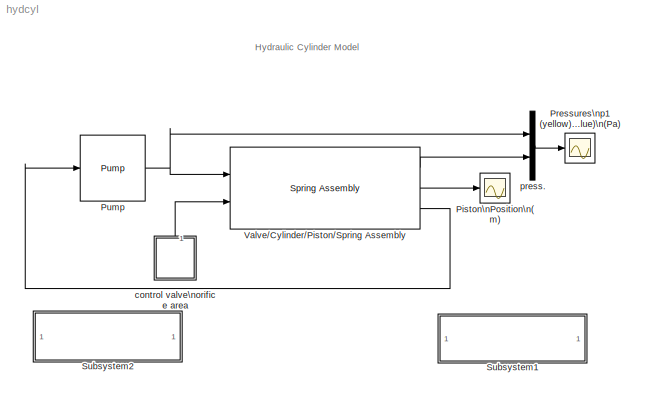
MODEL hydcyl
KIND model
CONFIG PreLoadFcn = load newhcd
BLOCK [Scope] Piston\nPosition\n(m)
  DataFormat = Array
  NumInputPorts = 1
  Ports = [1]
  TickLabels = on
  TimeRange = 0.1
  YMax = 0.04
  YMin = 0
BLOCK [Scope] Pressures\np1 (yellow)\np2 (purple)\np3 (blue)\n(Pa)
  DataFormat = Array
  NumInputPorts = 1
  Ports = [1]
  TickLabels = on
  TimeRange = 0.1
  YMax = 2e+06
  YMin = 0
BLOCK [Reference] Pump  REF=hydlib/Pump  (lib defined in mdl_a1138ae370f5)
  C2 = C2
  Ports = [1, 1]
  Qpump = Qmax*[1 1 0 0 1 1]
  ShowPortLabels = on
  SourceBlock = hydlib/Pump
  SourceType = Pump
  p10 = Qmax/C2*2
  t = [0        .04     .04     .05    .05     .1]
BLOCK [SubSystem] Subsystem1
  MaskDisplay = disp('Double click to see\\na 4 cylinder model.')
  MaskIconFrame = on
  MaskIconOpaque = on
  MaskIconRotate = none
  MaskIconUnits = autoscale
  MaskType = Button
  MinAlgLoopOccurrences = off
  OpenFcn = hydcyl4
  Ports = []
  PropExecContextAcrossSSBoundary = on
  RTWSystemCode = Auto
  ShowPortLabels = off
  TreatAsAtomicUnit = off
BLOCK [SubSystem] Subsystem2
  MaskDisplay = disp('Double click to run the \\nSimulation for 0.1 seconds')
  MaskIconFrame = on
  MaskIconOpaque = on
  MaskIconRotate = none
  MaskIconUnits = autoscale
  MaskType = Button
  MinAlgLoopOccurrences = off
  OpenFcn = sim(get_param(0,'CurrentSystem'),0.1)
  Ports = []
  PropExecContextAcrossSSBoundary = on
  RTWSystemCode = Auto
  ShowPortLabels = off
  TreatAsAtomicUnit = off
BLOCK [Reference] Valve//Cylinder//Piston//Spring Assembly  REF=hydlib/Valve//Cylinder//Piston//Spring Assembly  (lib defined in mdl_a1138ae370f5)
  Ac = Ac
  C1 = C1
  Cd = Cd
  K = K
  Ports = [2, 3]
  ShowPortLabels = on
  SourceBlock = hydlib/Valve//Cylinder//Piston//Spring Assembly
  SourceType = Valve/Cylinder/Piston/Spring Assembly
  V30 = V30
  beta = Beta
  rho = rho
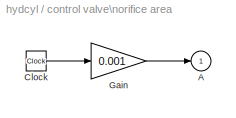
BLOCK [SubSystem] control valve\norifice area
  MaskDisplay = plot(0,0,100,100,[98,0],[96,0])
  MaskIconFrame = on
  MaskIconOpaque = on
  MaskIconRotate = none
  MaskIconUnits = autoscale
  MaskType = Ramp
  MinAlgLoopOccurrences = off
  Ports = [0, 1]
  PropExecContextAcrossSSBoundary = on
  RTWSystemCode = Auto
  ShowPortLabels = off
  TreatAsAtomicUnit = off
BLOCK [Outport] control valve\norifice area/A
  IconDisplay = Port number
  InitialOutput = 0
BLOCK [Clock] control valve\norifice area/Clock
  Decimation = 10
BLOCK [Gain] control valve\norifice area/Gain
  Gain = 0.001
BLOCK [Mux] press.
  DisplayOption = bar
  Inputs = 2
  Ports = [2, 1]
ANNOTATION (root): Hydraulic Cylinder Model
NET Pump:1 -> Valve//Cylinder//Piston//Spring Assembly:1, press.:1
LINE Valve//Cylinder//Piston//Spring Assembly:1 -> press.:2
LINE Valve//Cylinder//Piston//Spring Assembly:2 -> Piston\nPosition\n(m):1
LINE Valve//Cylinder//Piston//Spring Assembly:3 -> Pump:1
LINE control valve\norifice area/Clock:1 -> control valve\norifice area/Gain:1
LINE control valve\norifice area/Gain:1 -> control valve\norifice area/A:1
LINE control valve\norifice area:1 -> Valve//Cylinder//Piston//Spring Assembly:2
LINE press.:1 -> Pressures\np1 (yellow)\np2 (purple)\np3 (blue)\n(Pa):1
note: NET lines group one-source signal fan-out (src -> all destinations, sorted); 1:1 wires keep LINE
